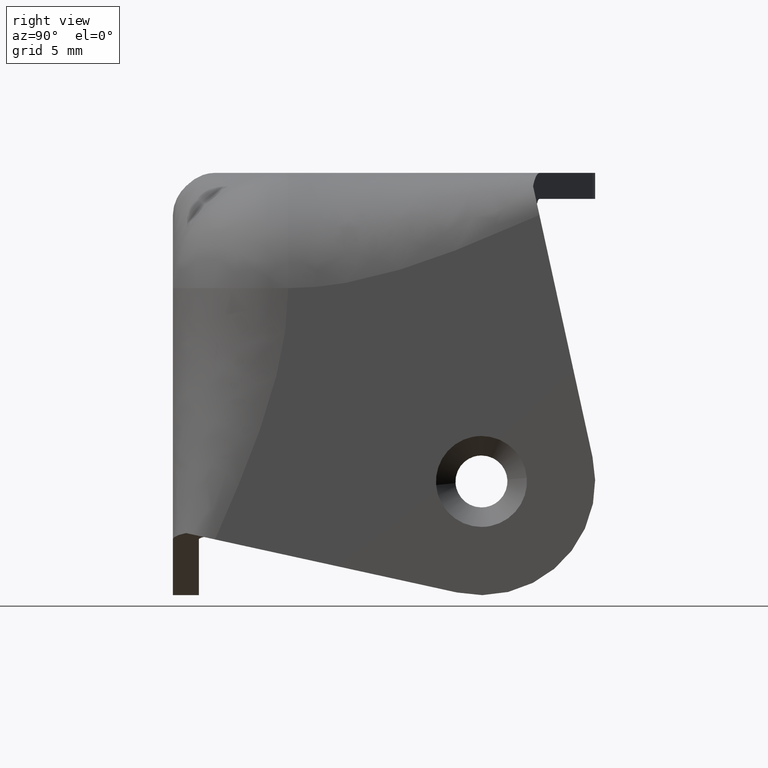
[diagram: clean part render]
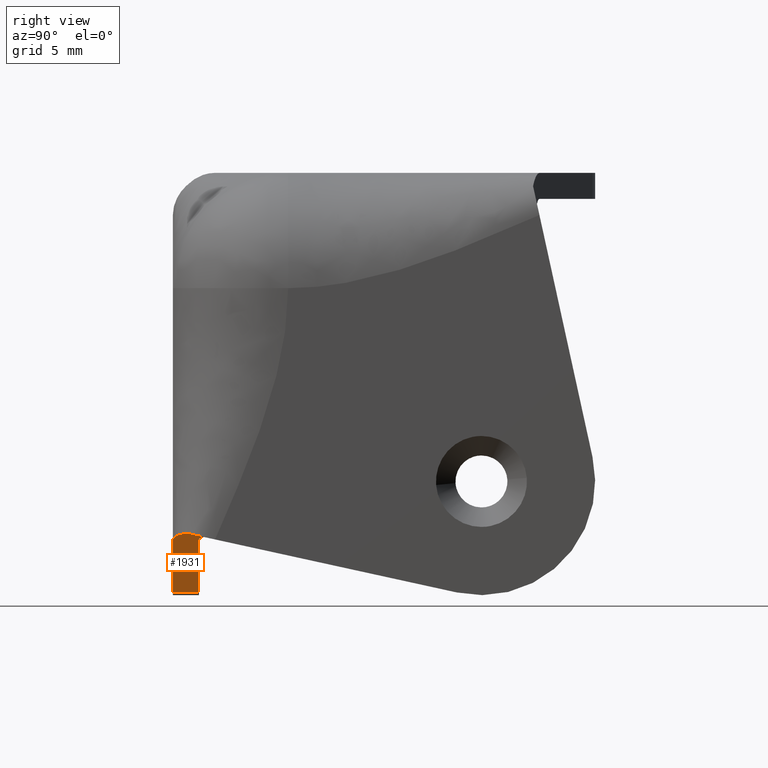
[diagram: same view with one face highlighted and labeled with its STEP entity id]
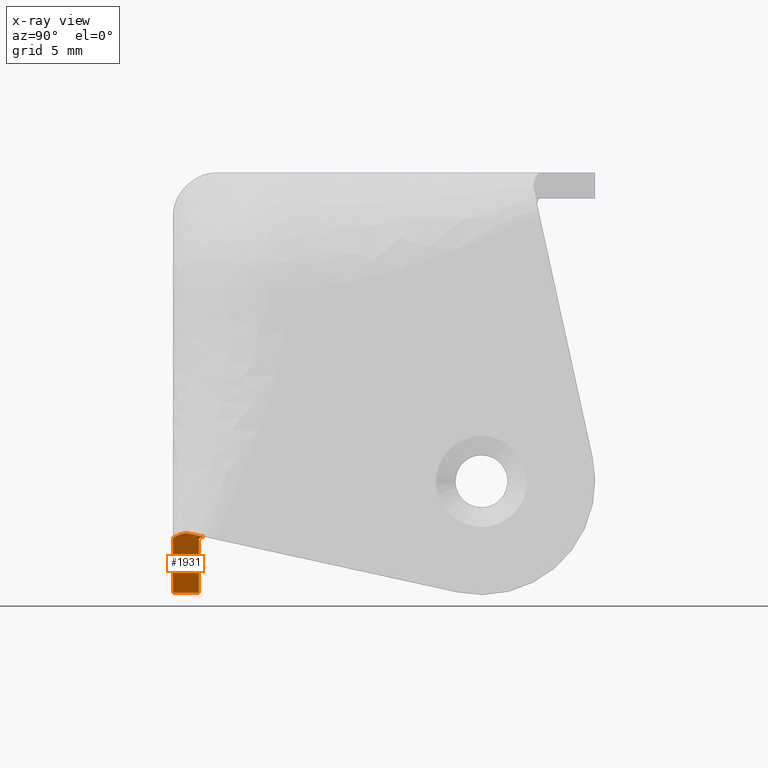
[diagram: x-ray of the same camera — body ghosted, the highlighted face saturated]
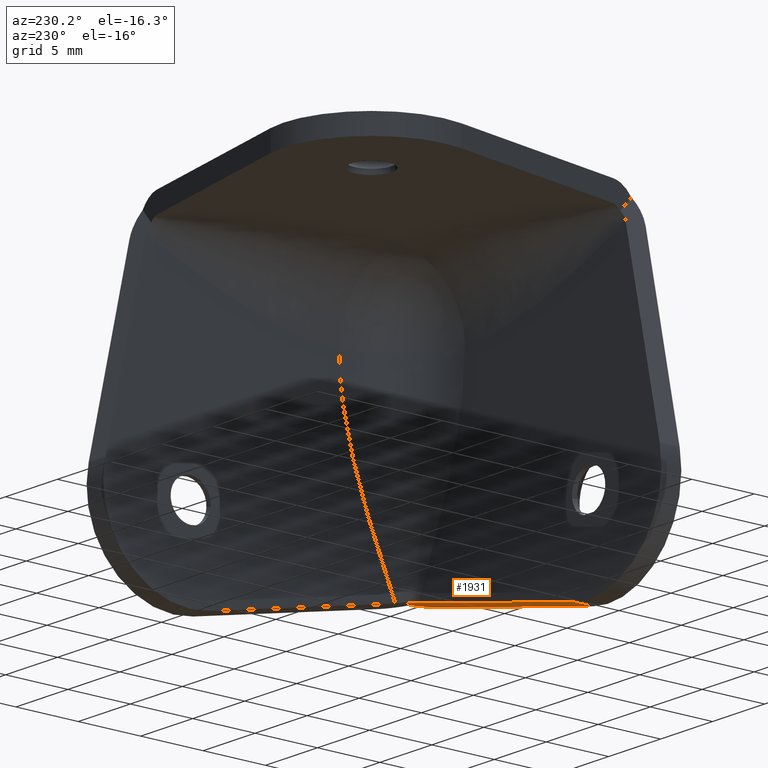
[diagram: same view with one face highlighted and labeled with its STEP entity id]
A machine part, right view. The second image highlights one B-rep face of the part: STEP entity #1931.
The next image is the same camera in x-ray: the body ghosted, the highlighted face saturated — about 0% of this face is hidden behind the body in this view.
A second angle (auxiliary view) of the same face is appended — the face is thin or edge-on in the first view.
In plain terms, the highlighted face is a freeform B-spline surface patch.
Its self-contained STEP definition (entity closure, byte-faithful):
#1222=CARTESIAN_POINT('',(-0.811627572432028,0.811627572431861,3.822026436755820));
#1223=VERTEX_POINT('',#1222);
#1249=CARTESIAN_POINT('',(-2.600000000000000,0.0,3.429872419133785));
#1250=VERTEX_POINT('',#1249);
#1258=CARTESIAN_POINT('',(-0.811627572432028,0.811627572431861,3.822026436755820));
#1259=CARTESIAN_POINT('',(-0.929210512418091,0.687458764011432,3.796242868630668));
#1260=CARTESIAN_POINT('',(-1.055829663652359,0.575902586554628,3.768477841559673));
#1261=CARTESIAN_POINT('',(-1.259378123649140,0.427578574032735,3.723843768064668));
#1262=CARTESIAN_POINT('',(-1.329513199380995,0.381327433238943,3.708464559964322));
#1263=CARTESIAN_POINT('',(-1.438308182494556,0.316964906615582,3.684608013605509));
#1264=CARTESIAN_POINT('',(-1.475173072806708,0.296348058347128,3.676524286400667));
#1265=CARTESIAN_POINT('',(-1.550145857554079,0.256849331462898,3.660084266247273));
#1266=CARTESIAN_POINT('',(-1.588253035553192,0.237977496371170,3.651728130398712));
#1267=CARTESIAN_POINT('',(-1.779660257754044,0.149154657690048,3.609756385570367));
#1268=CARTESIAN_POINT('',(-1.937319810303700,0.094668034712823,3.575184824302830));
#1269=CARTESIAN_POINT('',(-2.180861725566051,0.038716394306652,3.521780992384349));
#1270=CARTESIAN_POINT('',(-2.263226291860761,0.024393286969469,3.503720103564847));
#1271=CARTESIAN_POINT('',(-2.388672659187544,0.009851657578166,3.476212244360049));
#1272=CARTESIAN_POINT('',(-2.430896385011200,0.006161579104591,3.466953432568134));
#1273=CARTESIAN_POINT('',(-2.515376635818956,0.001240439346379,3.448428616789674));
#1274=CARTESIAN_POINT('',(-2.557664202464133,8.470329E-019,3.439155805992695));
#1275=CARTESIAN_POINT('',(-2.600000000000001,4.696964E-032,3.429872419133785));
#1276=B_SPLINE_CURVE_WITH_KNOTS('',3,(#1258,#1259,#1260,#1261,#1262,#1263,#1264,#1265,#1266,#1267,#1268,#1269,#1270,#1271,#1272,#1273,#1274,#1275),.UNSPECIFIED.,.F.,.U.,(4,2,2,2,2,2,2,2,4),(0.0,0.250000000000000,0.375000000000000,0.437500000000000,0.500000000000000,0.750000000000000,0.875000000000000,0.937500000000000,1.0),.UNSPECIFIED.);
#1277=EDGE_CURVE('',#1223,#1250,#1276,.T.);
#1640=CARTESIAN_POINT('',(-2.600000000000000,1.600000000000000,3.429872419133790));
#1641=VERTEX_POINT('',#1640);
#1642=CARTESIAN_POINT('',(-1.912167872941795,1.912167872941630,3.580700137072970));
#1643=VERTEX_POINT('',#1642);
#1644=CARTESIAN_POINT('',(-2.600000000000000,1.600000000000000,3.429872419133785));
#1645=CARTESIAN_POINT('',(-2.535070705456864,1.600000000000000,3.444110104374258));
#1646=CARTESIAN_POINT('',(-2.471392921323096,1.607499179324188,3.458073358613916));
#1647=CARTESIAN_POINT('',(-2.346298245734169,1.636045039857254,3.485504098911130));
#1648=CARTESIAN_POINT('',(-2.284355147124131,1.657449200141914,3.499086971588783));
#1649=CARTESIAN_POINT('',(-2.167354304843930,1.711701258646900,3.524742897422829));
#1650=CARTESIAN_POINT('',(-2.111811727797640,1.744543428269874,3.536922264763785));
#1651=CARTESIAN_POINT('',(-2.006402485927516,1.821196672557844,3.560036386328538));
#1652=CARTESIAN_POINT('',(-1.957281033023185,1.864526521987537,3.570807730602755));
#1653=CARTESIAN_POINT('',(-1.912167872941795,1.912167872941630,3.580700137072970));
#1654=B_SPLINE_CURVE_WITH_KNOTS('',3,(#1644,#1645,#1646,#1647,#1648,#1649,#1650,#1651,#1652,#1653),.UNSPECIFIED.,.F.,.U.,(4,2,2,2,4),(0.0,0.250000000000000,0.500000000000000,0.750000000000000,1.0),.UNSPECIFIED.);
#1655=EDGE_CURVE('',#1641,#1643,#1654,.T.);
#1824=CARTESIAN_POINT('',(-0.811627572432028,0.811627572431861,3.822026436755820));
#1825=CARTESIAN_POINT('',(-1.912167872941795,1.912167872941630,3.580700137072970));
#1826=QUASI_UNIFORM_CURVE('',1,(#1824,#1825),.UNSPECIFIED.,.F.,.U.);
#1827=EDGE_CURVE('',#1223,#1643,#1826,.T.);
#1902=CARTESIAN_POINT('',(0.021989800828203,-0.095512781547282,4.004821919980738));
#1903=CARTESIAN_POINT('',(-18.334282542612669,-0.095512781547282,-0.020338520360534));
#1904=CARTESIAN_POINT('',(0.021989800828203,2.007680705777251,4.004821919980738));
#1905=CARTESIAN_POINT('',(-18.334282542612669,2.007680705777251,-0.020338520360534));
#1906=B_SPLINE_SURFACE_WITH_KNOTS('',1,1,((#1902,#1904),(#1903,#1905)),.UNSPECIFIED.,.F.,.F.,.U.,(2,2),(2,2),(0.0,18.792409396271161),(0.0,2.103193487324533),.UNSPECIFIED.);
#1907=ORIENTED_EDGE('',*,*,#1827,.F.);
#1908=ORIENTED_EDGE('',*,*,#1277,.T.);
#1909=CARTESIAN_POINT('',(-17.500664717419600,0.0,0.162457041421270));
#1910=VERTEX_POINT('',#1909);
#1911=CARTESIAN_POINT('',(-17.500664717419600,0.0,0.162457041421270));
#1912=CARTESIAN_POINT('',(-2.600000000000000,0.0,3.429872419133785));
#1913=QUASI_UNIFORM_CURVE('',1,(#1911,#1912),.UNSPECIFIED.,.F.,.U.);
#1914=EDGE_CURVE('',#1910,#1250,#1913,.T.);
#1915=ORIENTED_EDGE('',*,*,#1914,.F.);
#1916=CARTESIAN_POINT('',(-17.500664717419600,1.600000000000045,0.162457041421270));
#1917=VERTEX_POINT('',#1916);
#1918=CARTESIAN_POINT('',(-17.500664717419600,1.600000000000045,0.162457041421270));
#1919=CARTESIAN_POINT('',(-17.500664717419600,0.0,0.162457041421270));
#1920=QUASI_UNIFORM_CURVE('',1,(#1918,#1919),.UNSPECIFIED.,.F.,.U.);
#1921=EDGE_CURVE('',#1917,#1910,#1920,.T.);
#1922=ORIENTED_EDGE('',*,*,#1921,.F.);
#1923=CARTESIAN_POINT('',(-17.500664717419600,1.600000000000045,0.162457041421270));
#1924=CARTESIAN_POINT('',(-2.600000000000000,1.600000000000000,3.429872419133790));
#1925=QUASI_UNIFORM_CURVE('',1,(#1923,#1924),.UNSPECIFIED.,.F.,.U.);
#1926=EDGE_CURVE('',#1917,#1641,#1925,.T.);
#1927=ORIENTED_EDGE('',*,*,#1926,.T.);
#1928=ORIENTED_EDGE('',*,*,#1655,.T.);
#1929=EDGE_LOOP('',(#1907,#1908,#1915,#1922,#1927,#1928));
#1930=FACE_OUTER_BOUND('',#1929,.T.);
#1931=ADVANCED_FACE('',(#1930),#1906,.T.);